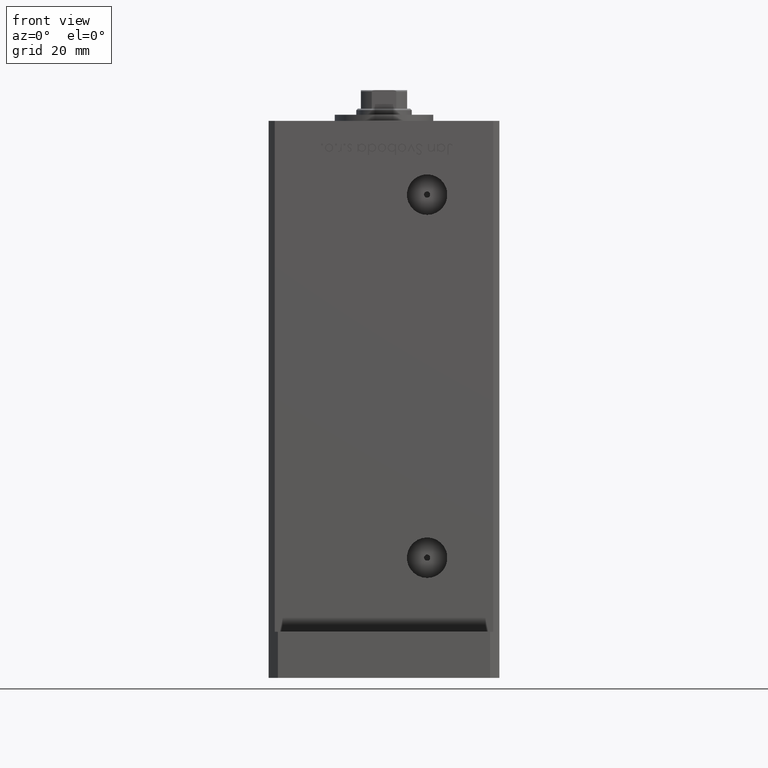
[diagram: clean part render]
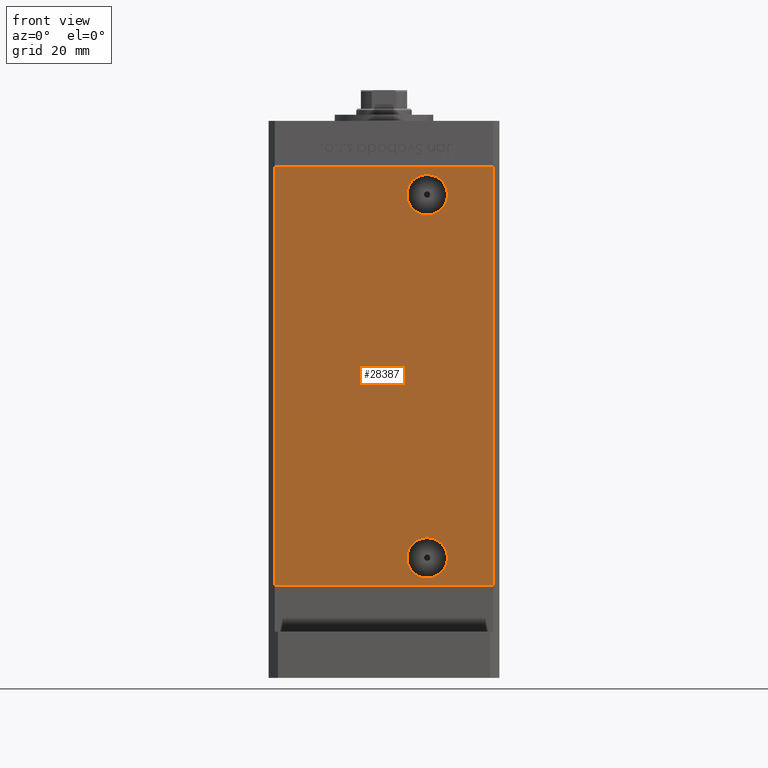
[diagram: same view with one face highlighted and labeled with its STEP entity id]
A machine part, front view. The second image highlights one B-rep face of the part: STEP entity #28387.
In plain terms, the highlighted planar face has unit normal (0, 1, 0).
Its self-contained STEP definition (entity closure, byte-faithful):
#1264 = FACE_OUTER_BOUND ( 'NONE', #41600, .T. ) ;
#1602 = ORIENTED_EDGE ( 'NONE', *, *, #22367, .F. ) ;
#2618 = AXIS2_PLACEMENT_3D ( 'NONE', #25220, #17070, #20610 ) ;
#2822 = VERTEX_POINT ( 'NONE', #30182 ) ;
#3139 = CARTESIAN_POINT ( 'NONE',  ( 13.99999999999999112, -32.50000000000000000, 9.000000000000007105 ) ) ;
#4329 = CIRCLE ( 'NONE', #38173, 6.579999999999998295 ) ;
#6241 = CARTESIAN_POINT ( 'NONE',  ( -35.49999999999999289, -32.50000000000000000, 136.0000000000000000 ) ) ;
#6508 = ORIENTED_EDGE ( 'NONE', *, *, #17850, .F. ) ;
#6593 = CARTESIAN_POINT ( 'NONE',  ( 13.99999999999999112, -32.50000000000000000, 2.420000000000009699 ) ) ;
#6923 = ORIENTED_EDGE ( 'NONE', *, *, #8831, .T. ) ;
#6970 = CARTESIAN_POINT ( 'NONE',  ( 13.99999999999999112, -32.50000000000000000, 120.4200000000000017 ) ) ;
#8831 = EDGE_CURVE ( 'NONE', #49129, #37096, #47630, .T. ) ;
#9548 = CIRCLE ( 'NONE', #2618, 6.580000000000002736 ) ;
#9961 = FACE_BOUND ( 'NONE', #40713, .T. ) ;
#10703 = DIRECTION ( 'NONE',  ( -0.000000000000000000, -0.000000000000000000, -1.000000000000000000 ) ) ;
#11635 = EDGE_CURVE ( 'NONE', #37096, #49129, #9548, .T. ) ;
#12333 = CARTESIAN_POINT ( 'NONE',  ( 13.99999999999999112, -32.50000000000000000, 15.58000000000000718 ) ) ;
#14181 = CARTESIAN_POINT ( 'NONE',  ( 13.99999999999999112, -32.50000000000000000, 127.0000000000000000 ) ) ;
#15440 = DIRECTION ( 'NONE',  ( 0.000000000000000000, 0.000000000000000000, -1.000000000000000000 ) ) ;
#16019 = VERTEX_POINT ( 'NONE', #19111 ) ;
#16466 = VECTOR ( 'NONE', #46582, 1000.000000000000000 ) ;
#17070 = DIRECTION ( 'NONE',  ( -0.000000000000000000, 1.000000000000000000, -0.000000000000000000 ) ) ;
#17832 = FACE_BOUND ( 'NONE', #51486, .T. ) ;
#17850 = EDGE_CURVE ( 'NONE', #35048, #21382, #25350, .T. ) ;
#18372 = DIRECTION ( 'NONE',  ( 0.000000000000000000, -0.000000000000000000, 1.000000000000000000 ) ) ;
#18899 = CARTESIAN_POINT ( 'NONE',  ( -35.49999999999999289, -32.50000000000000000, 136.0000000000000000 ) ) ;
#19111 = CARTESIAN_POINT ( 'NONE',  ( -35.49999999999999289, -32.50000000000000000, 0.000000000000000000 ) ) ;
#20610 = DIRECTION ( 'NONE',  ( 0.000000000000000000, 0.000000000000000000, -1.000000000000000000 ) ) ;
#21382 = VERTEX_POINT ( 'NONE', #12333 ) ;
#21910 = LINE ( 'NONE', #18899, #52747 ) ;
#22171 = CARTESIAN_POINT ( 'NONE',  ( -35.49999999999999289, -32.50000000000000000, 136.0000000000000000 ) ) ;
#22367 = EDGE_CURVE ( 'NONE', #43488, #2822, #21910, .T. ) ;
#23786 = DIRECTION ( 'NONE',  ( 0.000000000000000000, 0.000000000000000000, -1.000000000000000000 ) ) ;
#24222 = AXIS2_PLACEMENT_3D ( 'NONE', #14181, #32289, #15440 ) ;
#25220 = CARTESIAN_POINT ( 'NONE',  ( 13.99999999999999112, -32.50000000000000000, 127.0000000000000000 ) ) ;
#25350 = CIRCLE ( 'NONE', #31441, 6.579999999999998295 ) ;
#26061 = AXIS2_PLACEMENT_3D ( 'NONE', #22171, #38761, #18372 ) ;
#27584 = EDGE_CURVE ( 'NONE', #2822, #47070, #34887, .T. ) ;
#28387 = ADVANCED_FACE ( 'NONE', ( #9961, #1264, #17832 ), #34411, .F. ) ;
#28809 = ORIENTED_EDGE ( 'NONE', *, *, #27584, .F. ) ;
#29510 = VECTOR ( 'NONE', #51408, 1000.000000000000000 ) ;
#29763 = CARTESIAN_POINT ( 'NONE',  ( -35.49999999999999289, -32.50000000000000000, 0.000000000000000000 ) ) ;
#29992 = CARTESIAN_POINT ( 'NONE',  ( 13.99999999999999112, -32.50000000000000000, 133.5800000000000125 ) ) ;
#30182 = CARTESIAN_POINT ( 'NONE',  ( 35.49999999999999289, -32.50000000000000000, 136.0000000000000000 ) ) ;
#31231 = EDGE_CURVE ( 'NONE', #21382, #35048, #4329, .T. ) ;
#31314 = CARTESIAN_POINT ( 'NONE',  ( 35.49999999999999289, -32.50000000000000000, 0.000000000000000000 ) ) ;
#31441 = AXIS2_PLACEMENT_3D ( 'NONE', #3139, #48751, #23786 ) ;
#31601 = EDGE_CURVE ( 'NONE', #16019, #47070, #46322, .T. ) ;
#31879 = LINE ( 'NONE', #47633, #37843 ) ;
#31961 = DIRECTION ( 'NONE',  ( 0.000000000000000000, -1.000000000000000000, 0.000000000000000000 ) ) ;
#32289 = DIRECTION ( 'NONE',  ( -0.000000000000000000, 1.000000000000000000, -0.000000000000000000 ) ) ;
#32744 = ORIENTED_EDGE ( 'NONE', *, *, #31231, .F. ) ;
#34239 = ORIENTED_EDGE ( 'NONE', *, *, #11635, .T. ) ;
#34337 = CARTESIAN_POINT ( 'NONE',  ( 35.49999999999999289, -32.50000000000000000, 136.0000000000000000 ) ) ;
#34411 = PLANE ( 'NONE',  #26061 ) ;
#34887 = LINE ( 'NONE', #34337, #29510 ) ;
#35048 = VERTEX_POINT ( 'NONE', #6593 ) ;
#37096 = VERTEX_POINT ( 'NONE', #6970 ) ;
#37843 = VECTOR ( 'NONE', #10703, 1000.000000000000000 ) ;
#38173 = AXIS2_PLACEMENT_3D ( 'NONE', #52587, #31961, #48779 ) ;
#38761 = DIRECTION ( 'NONE',  ( 0.000000000000000000, 1.000000000000000000, 0.000000000000000000 ) ) ;
#40231 = ORIENTED_EDGE ( 'NONE', *, *, #31601, .T. ) ;
#40713 = EDGE_LOOP ( 'NONE', ( #6508, #32744 ) ) ;
#41499 = ORIENTED_EDGE ( 'NONE', *, *, #52754, .T. ) ;
#41600 = EDGE_LOOP ( 'NONE', ( #40231, #28809, #1602, #41499 ) ) ;
#43488 = VERTEX_POINT ( 'NONE', #6241 ) ;
#44427 = DIRECTION ( 'NONE',  ( 1.000000000000000000, 0.000000000000000000, 0.000000000000000000 ) ) ;
#46322 = LINE ( 'NONE', #29763, #16466 ) ;
#46582 = DIRECTION ( 'NONE',  ( 1.000000000000000000, 0.000000000000000000, 0.000000000000000000 ) ) ;
#47070 = VERTEX_POINT ( 'NONE', #31314 ) ;
#47630 = CIRCLE ( 'NONE', #24222, 6.580000000000002736 ) ;
#47633 = CARTESIAN_POINT ( 'NONE',  ( -35.49999999999999289, -32.50000000000000000, 136.0000000000000000 ) ) ;
#48751 = DIRECTION ( 'NONE',  ( 0.000000000000000000, -1.000000000000000000, 0.000000000000000000 ) ) ;
#48779 = DIRECTION ( 'NONE',  ( 0.000000000000000000, 0.000000000000000000, -1.000000000000000000 ) ) ;
#49129 = VERTEX_POINT ( 'NONE', #29992 ) ;
#51408 = DIRECTION ( 'NONE',  ( -0.000000000000000000, -0.000000000000000000, -1.000000000000000000 ) ) ;
#51486 = EDGE_LOOP ( 'NONE', ( #34239, #6923 ) ) ;
#52587 = CARTESIAN_POINT ( 'NONE',  ( 13.99999999999999112, -32.50000000000000000, 9.000000000000007105 ) ) ;
#52747 = VECTOR ( 'NONE', #44427, 1000.000000000000000 ) ;
#52754 = EDGE_CURVE ( 'NONE', #43488, #16019, #31879, .T. ) ;